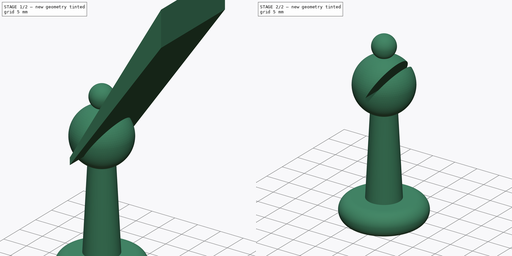
[diagram: build sequence overview — one tinted view per stage of 2, left to right]
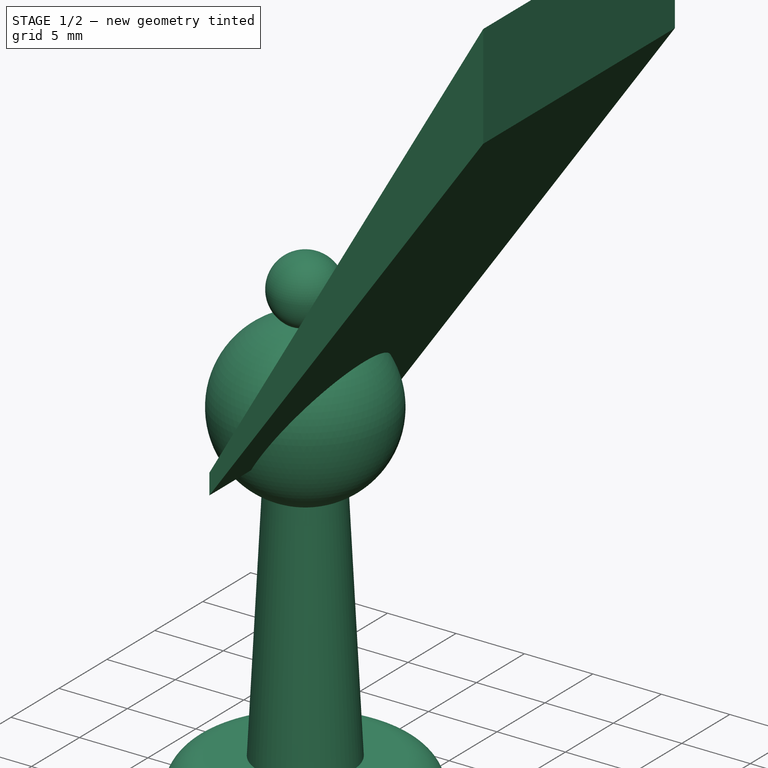
[diagram: stage 1 of 2 — iso view after this stage's code; geometry added in this stage tinted green]
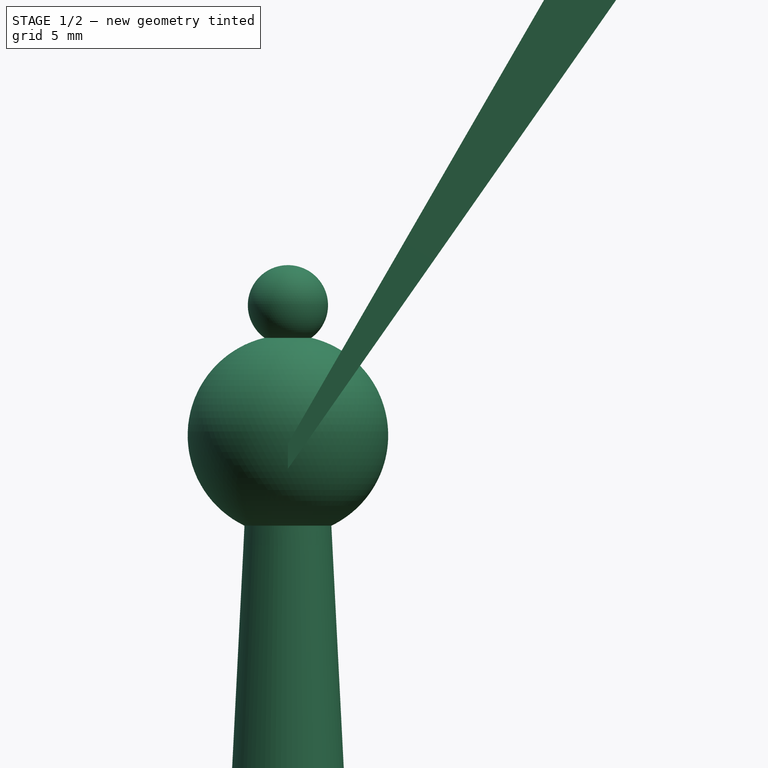
[diagram: stage 1 of 2 — front view after this stage's code; geometry added in this stage tinted green]
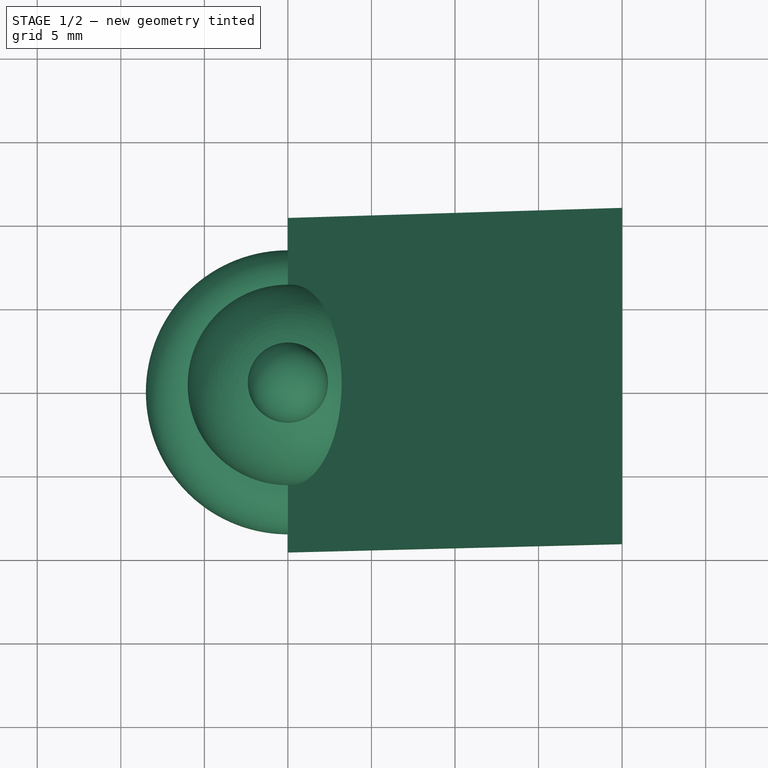
[diagram: stage 1 of 2 — top view after this stage's code; geometry added in this stage tinted green]
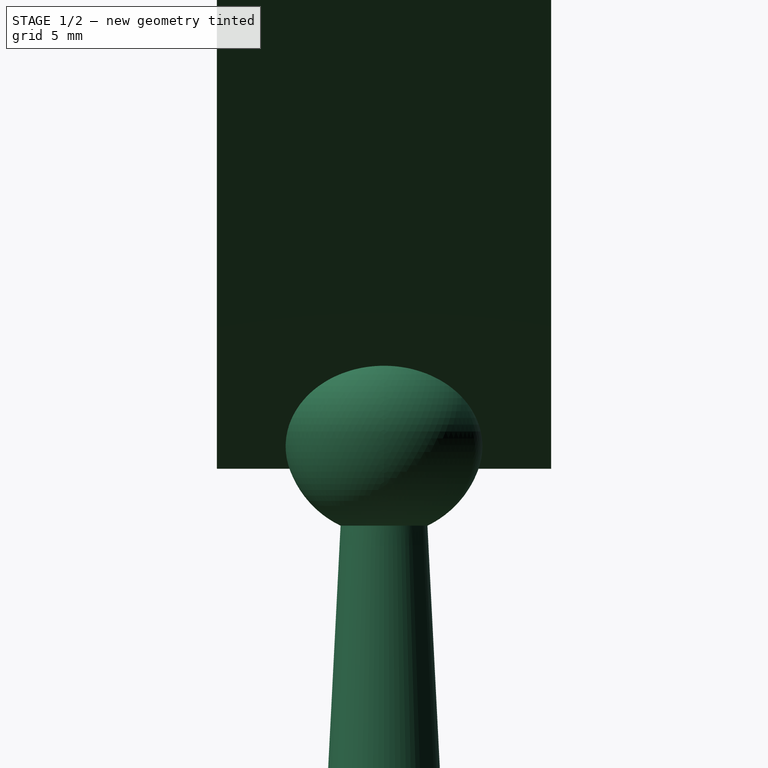
[diagram: stage 1 of 2 — right view after this stage's code; geometry added in this stage tinted green]
FCSTD DOCUMENT  (FreeCAD 0.15R4641 (Git))
Label: bish-v001
License: All rights reserved
LicenseURL: http://en.wikipedia.org/wiki/All_rights_reserved
objects: Sketcher::SketchObject×2, PartDesign::Revolution×1, PartDesign::Pad×1, Part::Cut×1, Raytracing::RayFeature×1, Raytracing::RayProject×1
note: 7 computed .brp shape members not serialized (recipe doc carries the construction recipe); baked Part::Feature solids carry a one-line shape summary decoded from their .brp

FEATURE [Sketcher::SketchObject] Sketch
  Placement = pos=(0,0,0) rot=(-1,0,0;4.71239rad)
  sketch-geometry (10):
    g0: LineSegment StartX=0 StartY=0 StartZ=0 EndX=6 EndY=0 EndZ=0
    g1: LineSegment [constr] StartX=6 StartY=0 StartZ=0 EndX=6 EndY=5 EndZ=0
    g2: LineSegment StartX=6 StartY=5 StartZ=0 EndX=0 EndY=5 EndZ=0
    g3: LineSegment StartX=0 StartY=5 StartZ=0 EndX=0 EndY=0 EndZ=0
    g4: LineSegment StartX=0 StartY=5 StartZ=0 EndX=3.5 EndY=5 EndZ=0
    g5: LineSegment StartX=3.5 StartY=5 StartZ=0 EndX=2.6 EndY=22.5926 EndZ=0
    g6: ArcOfCircle CenterX=6 CenterY=2.5 CenterZ=0 NormalX=0 NormalY=0 NormalZ=1 Radius=2.5 StartAngle=4.71239 EndAngle=7.85398
    g7: ArcOfCircle CenterX=0 CenterY=28 CenterZ=0 NormalX=0 NormalY=0 NormalZ=1 Radius=6 StartAngle=5.16058 EndAngle=7.61848
    g8: LineSegment StartX=0 StartY=5 StartZ=0 EndX=0 EndY=38.1837 EndZ=0
    g9: ArcOfCircle CenterX=0 CenterY=35.7837 CenterZ=0 NormalX=0 NormalY=0 NormalZ=1 Radius=2.4 StartAngle=5.33522 EndAngle=7.85398
  constraints (31):
    c: Coincident(g0,g1)
    c: Coincident(g1,g2)
    c: Coincident(g2,g3)
    c: Coincident(g3,g0)
    c: Horizontal(g0)
    c: Horizontal(g2)
    c: Vertical(g1)
    c: Vertical(g3)
    c: Coincident(g0,g-1)
    c: Coincident(g4,g5)
    c: Horizontal(g4)
    c: Coincident(g4,g2)
    c: DistanceX(g0) = 6
    c: DistanceY(g1) = 5
    c: Coincident(g6,g1)
    c: Coincident(g6,g0)
    c: PointOnObject(g6,g1)
    c: PointOnObject(g8,g-2)
    c: Radius(g7) = 6
    c: Coincident(g5,g7)
    c: DistanceX(g4,g2) = -3.5
    c: Coincident(g8,g2)
    c: Perpendicular(g7,g8)
    c: DistanceY(g-1,g7) = 28
    c: DistanceX(g8,g5) = 2.6
    c: PointOnObject(g9,g-2)
    c: Radius(g9) = 2.4
    c: PointOnObject(g9,g-2)
    c: Coincident(g7,g9)
    c: DistanceX(g7,g9) = -1.4
    c: Coincident(g9,g8)
FEATURE [PartDesign::Revolution] Revolution
  Angle = 360
  Axis = (0,0,1)
  Base = (0,0,0)
  Placement = pos=(0,0,0) rot=(-1,0,0;4.71239rad)
  ReferenceAxis = -> Sketch [V_Axis]
  Reversed = true
  Sketch = -> Sketch
FEATURE [Sketcher::SketchObject] Sketch001
  Placement = pos=(0,0,0) rot=(1,0,0;1.5708rad)
  sketch-geometry (5):
    g0: LineSegment [constr] StartX=0 StartY=0 StartZ=0 EndX=0 EndY=26 EndZ=0
    g1: LineSegment StartX=0 StartY=26 StartZ=0 EndX=0 EndY=27.5 EndZ=0
    g2: LineSegment StartX=0 StartY=27.5 StartZ=0 EndX=20 EndY=62.141 EndZ=0
    g3: LineSegment StartX=20 StartY=62.141 StartZ=0 EndX=20 EndY=54.563 EndZ=0
    g4: LineSegment StartX=20 StartY=54.563 StartZ=0 EndX=0 EndY=26 EndZ=0
  constraints (14):
    c: Coincident(g0,g-1)
    c: PointOnObject(g0,g-2)
    c: DistanceY(g0) = 26
    c: Coincident(g0,g1)
    c: PointOnObject(g1,g-2)
    c: Coincident(g1,g2)
    c: Coincident(g2,g3)
    c: Coincident(g3,g4)
    c: Coincident(g4,g1)
    c: Vertical(g3)
    c: Angle(g4,g1) = 0.610865
    c: Angle(g1,g2) = 2.61799
    c: DistanceY(g1,g0) = -1.5
    c: DistanceX(g3,g1) = -20
FEATURE [PartDesign::Pad] Pad
  Length = 20
  Length2 = 100
  Midplane = true
  Placement = pos=(0,0,0) rot=(1,0,0;1.5708rad)
  Sketch = -> Sketch001
  Type = 0
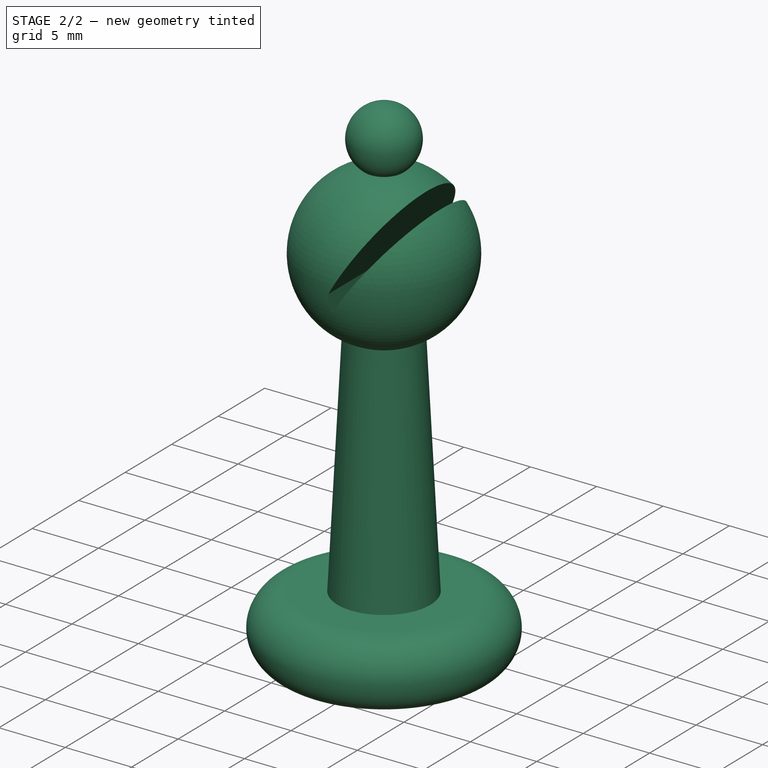
[diagram: stage 2 of 2 — iso view after this stage's code; geometry added in this stage tinted green]
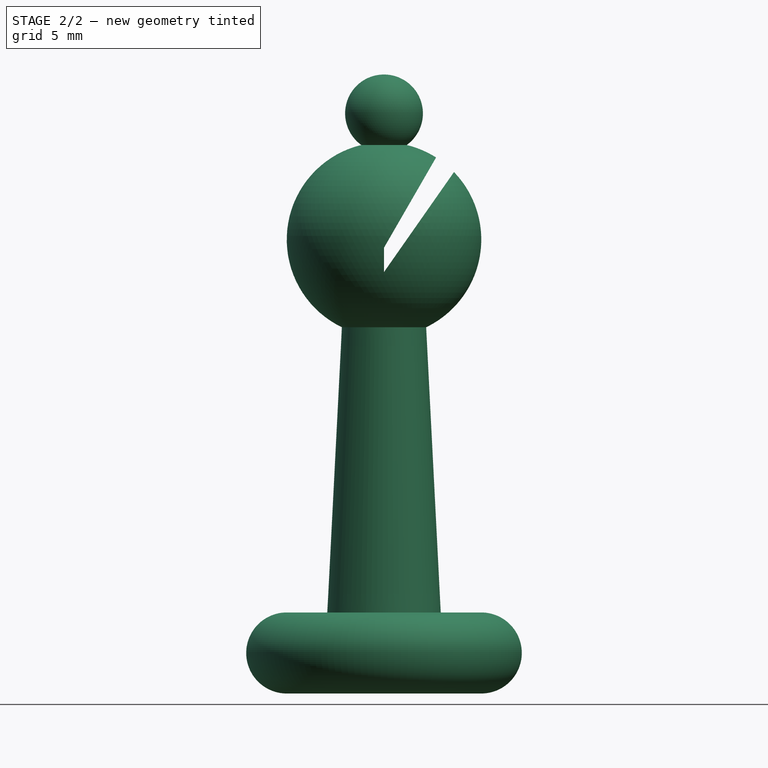
[diagram: stage 2 of 2 — front view after this stage's code; geometry added in this stage tinted green]
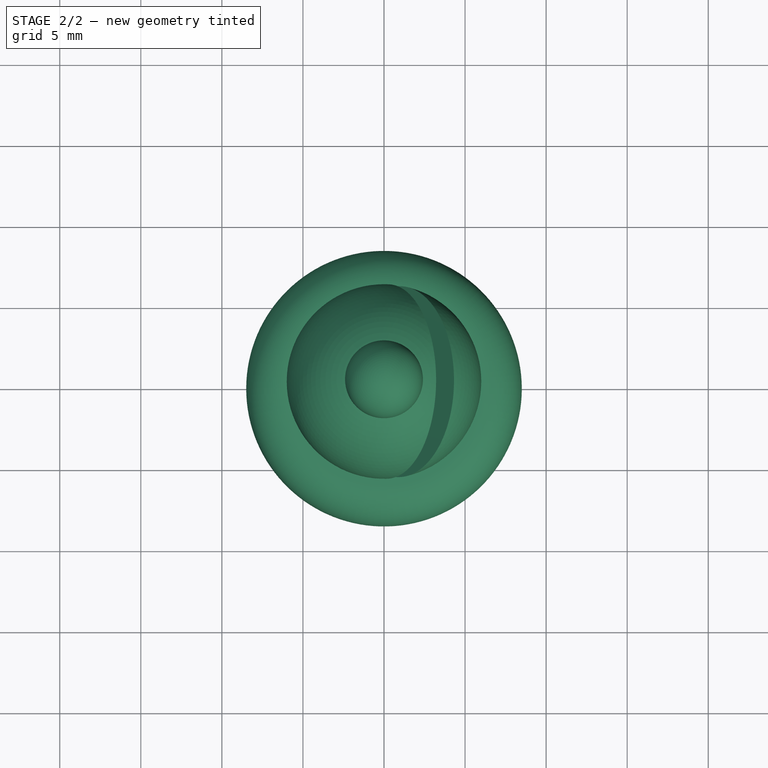
[diagram: stage 2 of 2 — top view after this stage's code; geometry added in this stage tinted green]
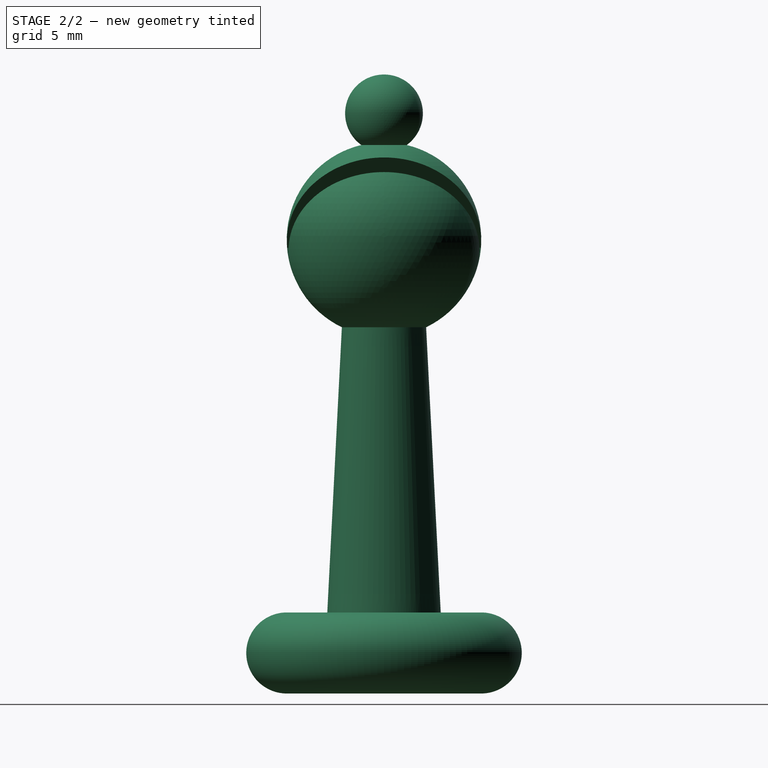
[diagram: stage 2 of 2 — right view after this stage's code; geometry added in this stage tinted green]
FEATURE [Part::Cut] Cut001
  Base = -> Revolution
  Tool = -> Pad
FEATURE [Raytracing::RayFeature] Cut001_View
  Result = <blob: 101726 chars omitted>
  Source = -> Cut001
  Transparency = 0
FEATURE [Raytracing::RayProject] PovProject
  Camera = // declares positon and view direction\n\n// Generated by FreeCAD (http://www.freecadweb.org/)\n#declare cam_location =  <19.9067,9.18161,-78.7549>;\n#declare cam_look_at  = <10.9926,18.1502,15.4793>;\n#declare cam_sky      = <0.0221975,0.995452,-0.0926409>;\n#declare cam_angle    = 45; \ncamera {\n  location  cam_location\n  look_at   cam_look_at\n  sky       cam_sky\n  angle     cam_angle \n  right x*800/600\n}
  Group = -> [Cut001_View]
  Template = <userpath>/git/free-cad-code/data/Mod/Raytracing/Templates/ProjectStd.pov
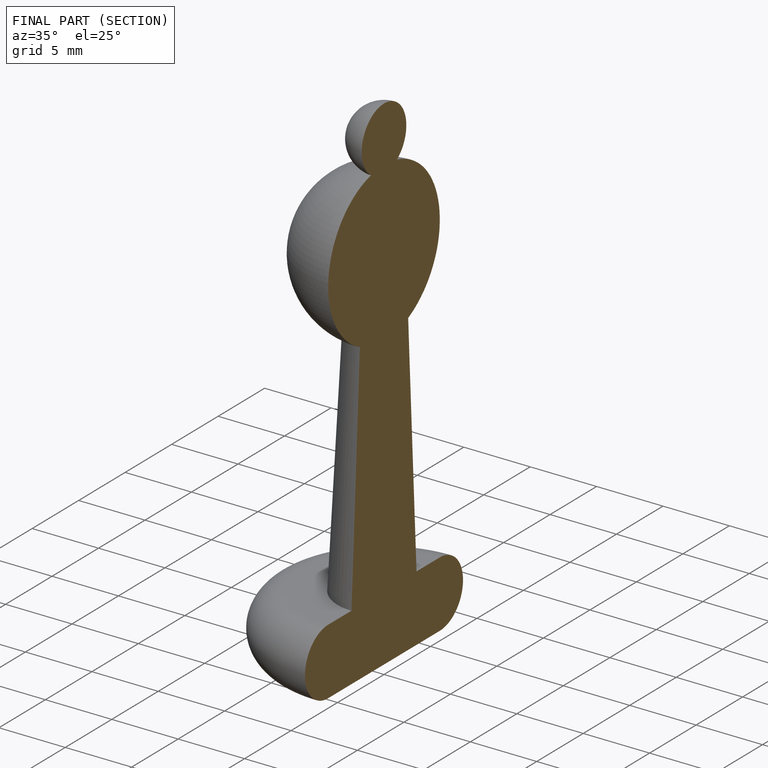
[diagram: finished part — half-section view (interior)]
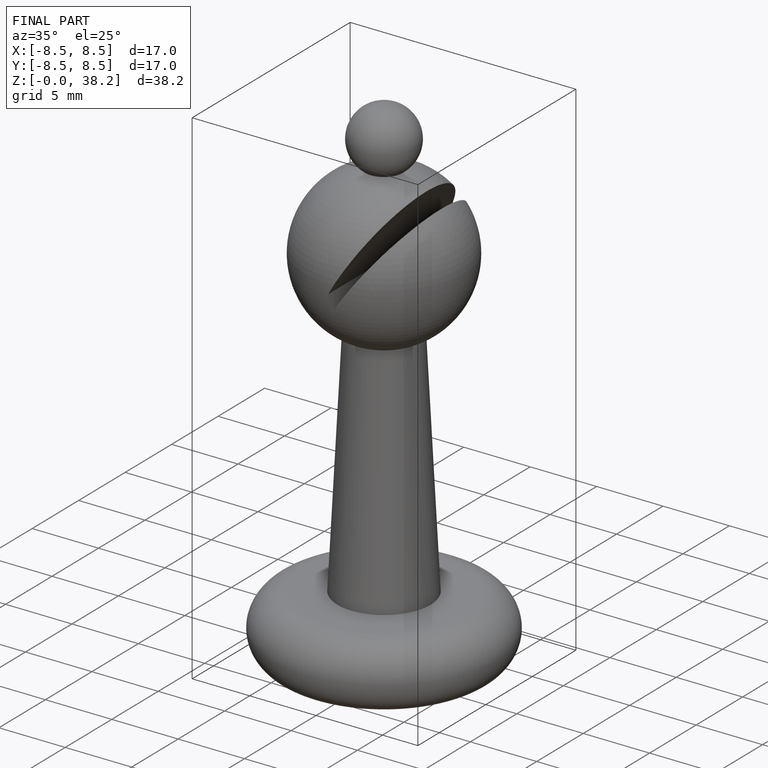
[diagram: finished part — iso view with bounding-box wireframe]
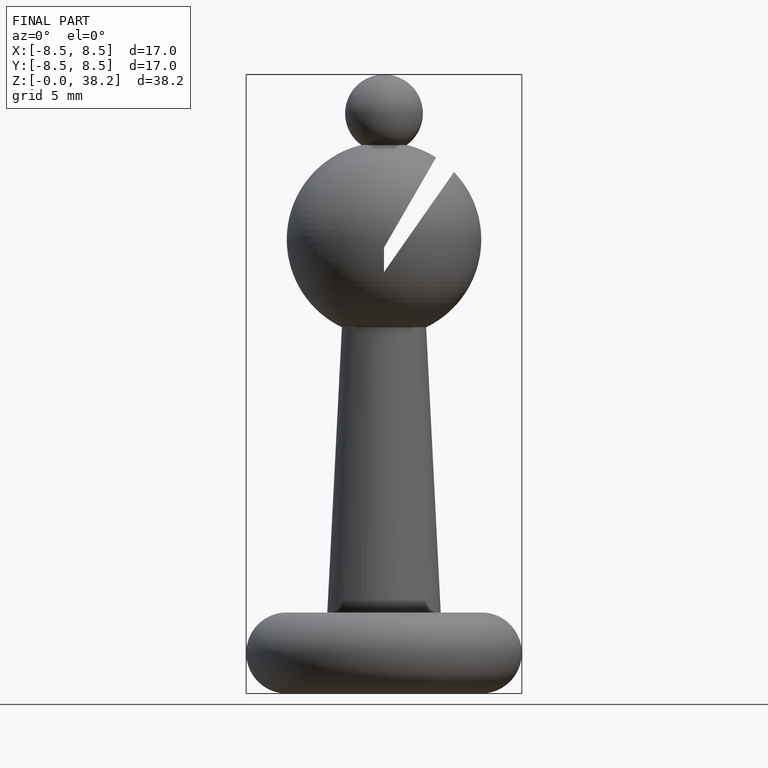
[diagram: finished part — front view with bounding-box wireframe]
